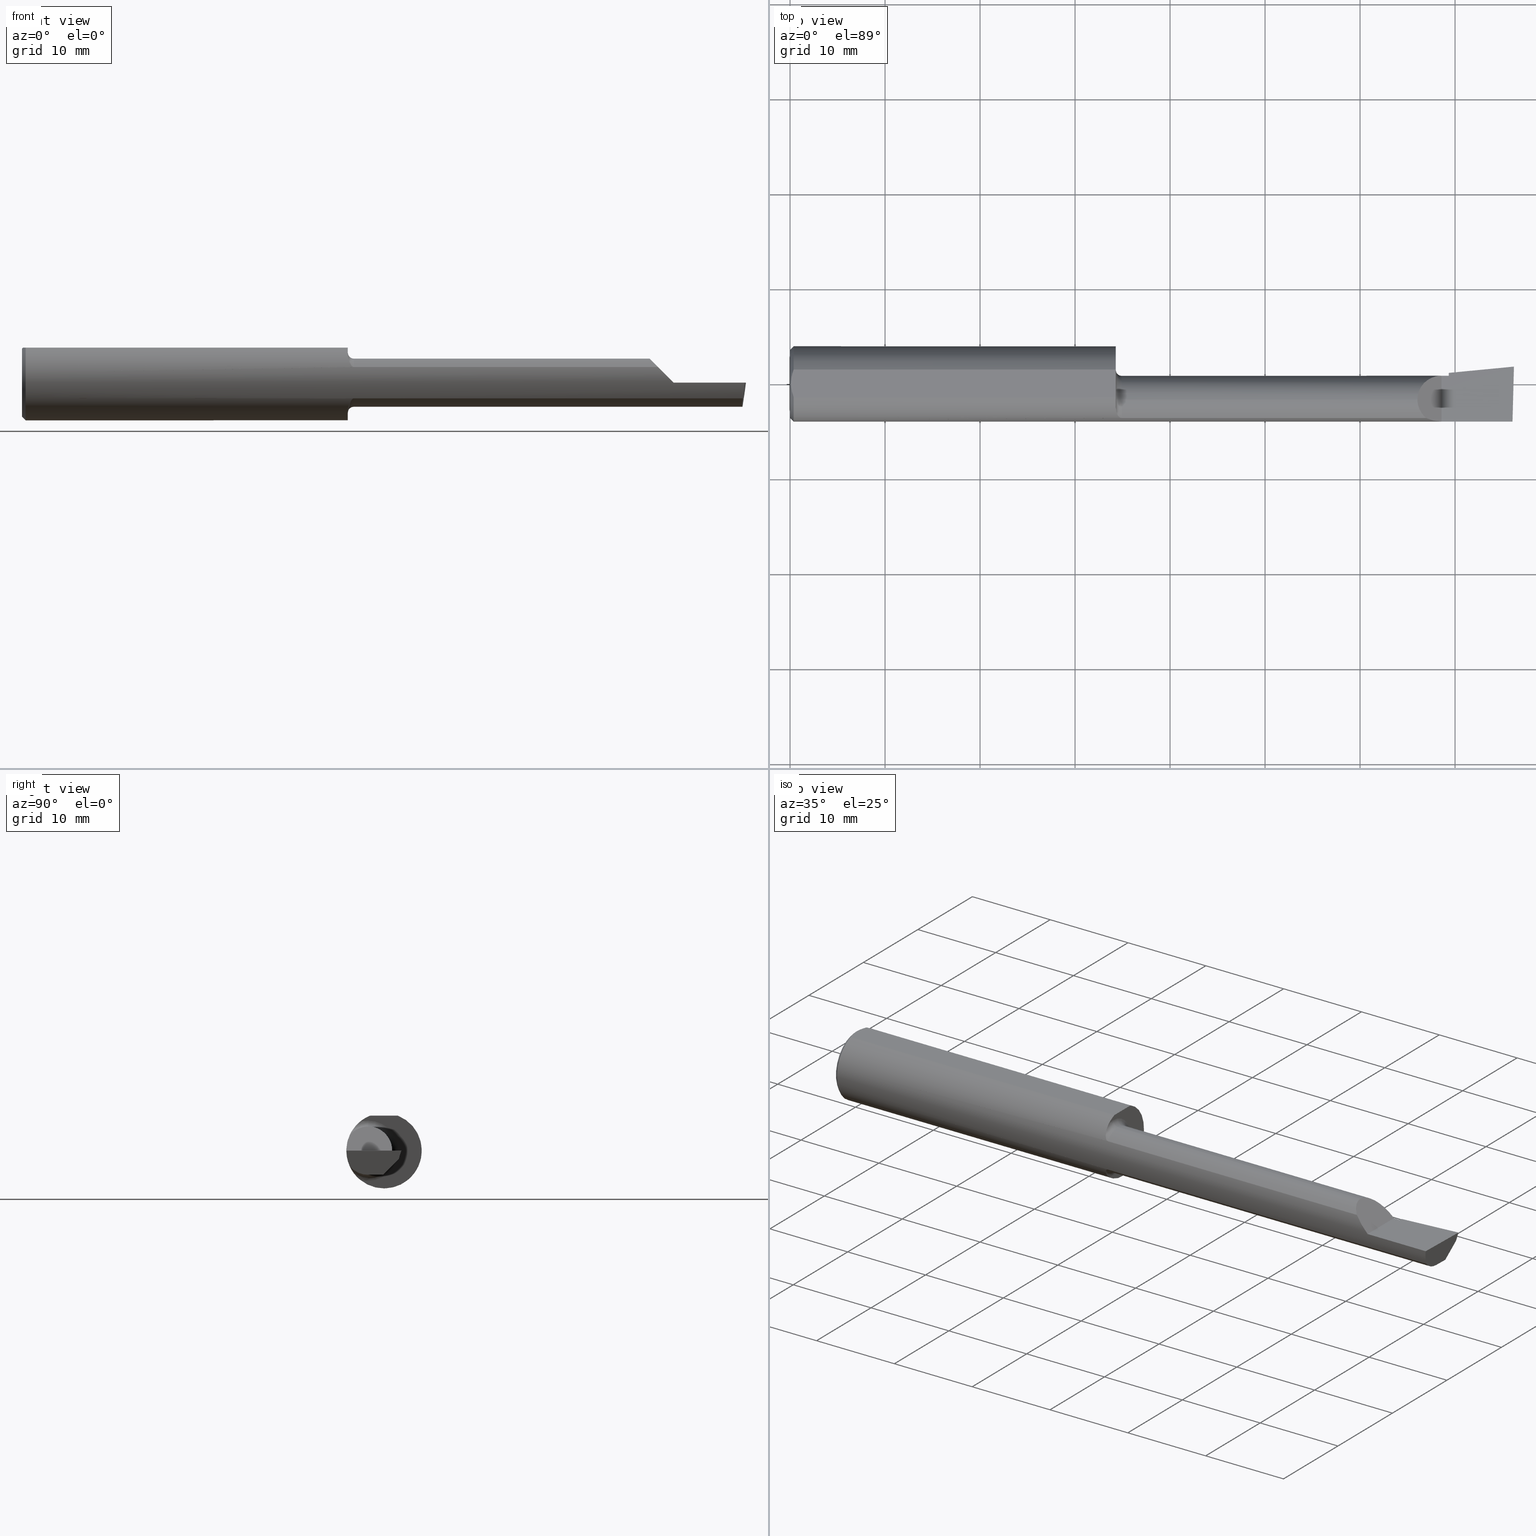
[diagram: canonical four-view strip — front | top / right | iso, engineering-drawing reading convention]
A machine part, canonical four-view strip (front | top / right | iso — engineering-drawing reading convention). The complete STEP part file that produces these views, byte-faithful:
ISO-10303-21;
HEADER;
FILE_DESCRIPTION (( 'STEP AP214' ),
    '1' );
FILE_NAME ('B23016000.STEP',
    '2020-05-07T17:23:28',
    ( '' ),
    ( '' ),
    'SwSTEP 2.0',
    'SolidWorks 2018',
    '' );
FILE_SCHEMA (( 'AUTOMOTIVE_DESIGN' ));
ENDSEC;

DATA;
#1 = EDGE_LOOP ( 'NONE', ( #568, #317, #294, #90, #201 ) ) ;
#2 = CARTESIAN_POINT ( 'NONE',  ( 0.01161840624095555018, -0.04838974479540033430, 0.1451000000000000345 ) ) ;
#3 = VECTOR ( 'NONE', #499, 39.37007874015748143 ) ;
#4 = LINE ( 'NONE', #204, #132 ) ;
#5 = AXIS2_PLACEMENT_3D ( 'NONE', #599, #686, #597 ) ;
#6 = CARTESIAN_POINT ( 'NONE',  ( 2.994029609882220999, -0.1561000000000000165, -6.741913824051284207E-17 ) ) ;
#7 = ORIENTED_EDGE ( 'NONE', *, *, #225, .F. ) ;
#8 = ORIENTED_EDGE ( 'NONE', *, *, #665, .T. ) ;
#9 = CARTESIAN_POINT ( 'NONE',  ( 0.008818052469297050708, -0.03886761757380372689, 0.1451000000000000068 ) ) ;
#10 = EDGE_CURVE ( 'NONE', #670, #557, #516, .T. ) ;
#11 = DIRECTION ( 'NONE',  ( -0.9953961983671800740, -0.09584575252021031166, 0.0000000000000000000 ) ) ;
#12 = COLOUR_RGB ( '',0.7529411764705882248, 0.7529411764705882248, 0.7529411764705882248 ) ;
#13 = CARTESIAN_POINT ( 'NONE',  ( 2.999999999999988010, 0.07190000000001794955, 6.195639166568494017E-14 ) ) ;
#14 = ADVANCED_FACE ( 'NONE', ( #263 ), #357, .F. ) ;
#15 = VERTEX_POINT ( 'NONE', #467 ) ;
#16 = DIRECTION ( 'NONE',  ( -0.9922060308645593851, 0.02598182930462575313, 0.1218693434050675817 ) ) ;
#17 = VERTEX_POINT ( 'NONE', #6 ) ;
#18 = ORIENTED_EDGE ( 'NONE', *, *, #649, .T. ) ;
#19 = AXIS2_PLACEMENT_3D ( 'NONE', #373, #40, #436 ) ;
#20 = CARTESIAN_POINT ( 'NONE',  ( 2.729999999999999982, 0.01597273520979038824, -0.05476916396232721362 ) ) ;
#21 = DIRECTION ( 'NONE',  ( 0.0000000000000000000, 0.0000000000000000000, 1.000000000000000000 ) ) ;
#22 = DIRECTION ( 'NONE',  ( -1.000000000000000000, -0.0000000000000000000, -0.0000000000000000000 ) ) ;
#23 = EDGE_CURVE ( 'NONE', #237, #694, #343, .T. ) ;
#24 = VERTEX_POINT ( 'NONE', #13 ) ;
#25 = LINE ( 'NONE', #365, #404 ) ;
#26 = DIRECTION ( 'NONE',  ( -1.000000000000000000, 0.0000000000000000000, -0.0000000000000000000 ) ) ;
#27 = EDGE_LOOP ( 'NONE', ( #429, #218, #481, #192 ) ) ;
#28 = CARTESIAN_POINT ( 'NONE',  ( 2.984129461495566904, -0.06558441532346323544, -0.09990000000000000269 ) ) ;
#29 = VECTOR ( 'NONE', #474, 39.37007874015748143 ) ;
#30 = PLANE ( 'NONE',  #312 ) ;
#31 = AXIS2_PLACEMENT_3D ( 'NONE', #249, #251, #315 ) ;
#32 = CARTESIAN_POINT ( 'NONE',  ( 3.000000000000000444, -0.06599999999999998923, -0.09990000000000000269 ) ) ;
#33 = ORIENTED_EDGE ( 'NONE', *, *, #624, .F. ) ;
#34 = AXIS2_PLACEMENT_3D ( 'NONE', #461, #322, #219 ) ;
#35 = ORIENTED_EDGE ( 'NONE', *, *, #682, .T. ) ;
#36 = CARTESIAN_POINT ( 'NONE',  ( 2.729999999999999982, 0.04590195698666438284, 0.0000000000000000000 ) ) ;
#37 = CARTESIAN_POINT ( 'NONE',  ( 2.700000000000000178, -0.1560999999999999888, -2.449293598294708386E-17 ) ) ;
#38 = CARTESIAN_POINT ( 'NONE',  ( 2.729999999999999982, -0.06599999999999998923, 0.0000000000000000000 ) ) ;
#39 = VECTOR ( 'NONE', #202, 39.37007874015748143 ) ;
#40 = DIRECTION ( 'NONE',  ( -1.000000000000000000, -0.0000000000000000000, -0.0000000000000000000 ) ) ;
#41 = AXIS2_PLACEMENT_3D ( 'NONE', #117, #111, #688 ) ;
#42 = CARTESIAN_POINT ( 'NONE',  ( 1.350000000000000089, -0.06599999999999998923, 0.0000000000000000000 ) ) ;
#43 = ORIENTED_EDGE ( 'NONE', *, *, #554, .F. ) ;
#44 = DIRECTION ( 'NONE',  ( -1.000000000000000000, -0.0000000000000000000, -0.0000000000000000000 ) ) ;
#45 = DIRECTION ( 'NONE',  ( 0.0000000000000000000, 0.0000000000000000000, -1.000000000000000000 ) ) ;
#46 = LINE ( 'NONE', #332, #3 ) ;
#47 = EDGE_CURVE ( 'NONE', #246, #57, #459, .T. ) ;
#48 = DIRECTION ( 'NONE',  ( 0.0000000000000000000, 0.0000000000000000000, 1.000000000000000000 ) ) ;
#49 = ORIENTED_EDGE ( 'NONE', *, *, #592, .T. ) ;
#50 = DIRECTION ( 'NONE',  ( -0.0000000000000000000, 0.0000000000000000000, 1.000000000000000000 ) ) ;
#51 = DIRECTION ( 'NONE',  ( 0.0000000000000000000, 1.000000000000000000, -1.656870447394628358E-16 ) ) ;
#52 = ORIENTED_EDGE ( 'NONE', *, *, #660, .T. ) ;
#53 = CARTESIAN_POINT ( 'NONE',  ( 2.729999999999999982, 0.04590195698666438284, 0.0000000000000000000 ) ) ;
#54 = LINE ( 'NONE', #507, #142 ) ;
#55 = CARTESIAN_POINT ( 'NONE',  ( 2.982005098963842027, -0.1170392233017039929, -0.1062257522883768429 ) ) ;
#56 = APPLICATION_PROTOCOL_DEFINITION ( 'draft international standard', 'automotive_design', 1998, #394 ) ;
#57 = VERTEX_POINT ( 'NONE', #265 ) ;
#58 = VECTOR ( 'NONE', #262, 39.37007874015748143 ) ;
#59 = DIRECTION ( 'NONE',  ( 0.0000000000000000000, 1.000000000000000000, 0.0000000000000000000 ) ) ;
#60 = EDGE_LOOP ( 'NONE', ( #705, #489, #392, #273 ) ) ;
#61 = CYLINDRICAL_SURFACE ( 'NONE', #5, 0.09989999999999998881 ) ;
#62 = ORIENTED_EDGE ( 'NONE', *, *, #519, .T. ) ;
#63 = EDGE_CURVE ( 'NONE', #17, #284, #196, .T. ) ;
#64 = ADVANCED_FACE ( 'NONE', ( #468 ), #30, .T. ) ;
#65 = VECTOR ( 'NONE', #354, 39.37007874015748143 ) ;
#66 = AXIS2_PLACEMENT_3D ( 'NONE', #162, #383, #51 ) ;
#67 = EDGE_CURVE ( 'NONE', #337, #246, #408, .T. ) ;
#68 = CARTESIAN_POINT ( 'NONE',  ( 0.0000000000000000000, -0.05756040305626783371, 0.1450999999999999512 ) ) ;
#69 = ADVANCED_FACE ( 'NONE', ( #236 ), #72, .F. ) ;
#70 = FACE_OUTER_BOUND ( 'NONE', #430, .T. ) ;
#71 = ORIENTED_EDGE ( 'NONE', *, *, #134, .T. ) ;
#72 = PLANE ( 'NONE',  #386 ) ;
#73 = ORIENTED_EDGE ( 'NONE', *, *, #287, .T. ) ;
#74 = FACE_OUTER_BOUND ( 'NONE', #585, .T. ) ;
#75 = CARTESIAN_POINT ( 'NONE',  ( 1.350000000000000089, 0.2061000000000000332, 0.1450999999999999512 ) ) ;
#76 = ORIENTED_EDGE ( 'NONE', *, *, #562, .T. ) ;
#77 = CARTESIAN_POINT ( 'NONE',  ( 1.350000000000000089, -0.06599999999999998923, 0.1248999999999999139 ) ) ;
#78 = ORIENTED_EDGE ( 'NONE', *, *, #63, .T. ) ;
#79 = CARTESIAN_POINT ( 'NONE',  ( 3.010979566536823526, 0.06220714699351684307, -0.03500000000000000333 ) ) ;
#80 = AXIS2_PLACEMENT_3D ( 'NONE', #504, #543, #541 ) ;
#81 = DIRECTION ( 'NONE',  ( -1.000000000000000000, -0.0000000000000000000, -0.0000000000000000000 ) ) ;
#82 = CARTESIAN_POINT ( 'NONE',  ( 1.375000000000000000, -0.06599999999999997535, -0.1248999999999999139 ) ) ;
#83 = FACE_OUTER_BOUND ( 'NONE', #604, .T. ) ;
#84 = CARTESIAN_POINT ( 'NONE',  ( 2.984118579027821738, -0.06599999999999998923, -0.09990000000000000269 ) ) ;
#85 = EDGE_CURVE ( 'NONE', #15, #569, #128, .T. ) ;
#86 = ORIENTED_EDGE ( 'NONE', *, *, #102, .T. ) ;
#87 = DIRECTION ( 'NONE',  ( -0.02617694830780482526, -0.9996573249755590362, 0.0000000000000000000 ) ) ;
#88 = CARTESIAN_POINT ( 'NONE',  ( 2.635154559332284041, -0.1419939393939393113, 0.06484544066771599780 ) ) ;
#89 = DIRECTION ( 'NONE',  ( 0.0000000000000000000, 0.0000000000000000000, 1.000000000000000000 ) ) ;
#90 = ORIENTED_EDGE ( 'NONE', *, *, #47, .F. ) ;
#91 = AXIS2_PLACEMENT_3D ( 'NONE', #368, #545, #149 ) ;
#92 = DIRECTION ( 'NONE',  ( 0.0000000000000000000, 0.0000000000000000000, 1.000000000000000000 ) ) ;
#93 = ORIENTED_EDGE ( 'NONE', *, *, #580, .F. ) ;
#94 = ORIENTED_EDGE ( 'NONE', *, *, #256, .F. ) ;
#95 = CARTESIAN_POINT ( 'NONE',  ( 2.984162675884399540, -0.1227037540429563450, -0.08745207517224938554 ) ) ;
#96 = EDGE_CURVE ( 'NONE', #611, #17, #302, .T. ) ;
#97 = AXIS2_PLACEMENT_3D ( 'NONE', #653, #656, #334 ) ;
#98 = VECTOR ( 'NONE', #11, 39.37007874015748854 ) ;
#99 = FACE_OUTER_BOUND ( 'NONE', #226, .T. ) ;
#100 = DIRECTION ( 'NONE',  ( 0.0000000000000000000, -1.000000000000000000, 0.0000000000000000000 ) ) ;
#101 =( GEOMETRIC_REPRESENTATION_CONTEXT ( 3 ) GLOBAL_UNCERTAINTY_ASSIGNED_CONTEXT ( ( #327 ) ) GLOBAL_UNIT_ASSIGNED_CONTEXT ( ( #151, #582, #326 ) ) REPRESENTATION_CONTEXT ( 'NONE', 'WORKASPACE' ) );
#102 = EDGE_CURVE ( 'NONE', #529, #479, #112, .T. ) ;
#103 = EDGE_LOOP ( 'NONE', ( #123, #221, #412, #171, #333, #130 ) ) ;
#104 = CARTESIAN_POINT ( 'NONE',  ( 1.375000000000000000, -0.06599999999999997535, -0.09989999999999990554 ) ) ;
#105 = DIRECTION ( 'NONE',  ( -1.000000000000000000, -0.0000000000000000000, -0.0000000000000000000 ) ) ;
#106 = FACE_OUTER_BOUND ( 'NONE', #181, .T. ) ;
#107 = APPLICATION_CONTEXT ( 'automotive_design' ) ;
#108 = ORIENTED_EDGE ( 'NONE', *, *, #115, .T. ) ;
#109 = CIRCLE ( 'NONE', #156, 0.1248999999999999139 ) ;
#110 = LENGTH_MEASURE_WITH_UNIT ( LENGTH_MEASURE( 0.02539999999999999897 ), #153 );
#111 = DIRECTION ( 'NONE',  ( 1.000000000000000000, 0.0000000000000000000, 0.0000000000000000000 ) ) ;
#112 = LINE ( 'NONE', #281, #690 ) ;
#113 = LINE ( 'NONE', #454, #425 ) ;
#114 = VERTEX_POINT ( 'NONE', #257 ) ;
#115 = EDGE_CURVE ( 'NONE', #209, #642, #367, .T. ) ;
#116 = ORIENTED_EDGE ( 'NONE', *, *, #185, .F. ) ;
#117 = CARTESIAN_POINT ( 'NONE',  ( 0.01499999999999999424, 0.0000000000000000000, 0.0000000000000000000 ) ) ;
#118 = AXIS2_PLACEMENT_3D ( 'NONE', #622, #695, #668 ) ;
#119 = VECTOR ( 'NONE', #245, 39.37007874015748143 ) ;
#120 =( BOUNDED_CURVE ( )  B_SPLINE_CURVE ( 3, ( #684, #680, #627, #645 ),
 .UNSPECIFIED., .F., .T. ) 
 B_SPLINE_CURVE_WITH_KNOTS ( ( 4, 4 ),
 ( 4.712388980384689674, 5.140782042693055942 ),
 .UNSPECIFIED. ) 
 CURVE ( )  GEOMETRIC_REPRESENTATION_ITEM ( )  RATIONAL_B_SPLINE_CURVE ( ( 1.000000000000000000, 0.9847649979006014576, 0.9847649979006014576, 1.000000000000000000 ) ) 
 REPRESENTATION_ITEM ( '' )  );
#121 = CIRCLE ( 'NONE', #602, 0.1560999999999999888 ) ;
#122 = VERTEX_POINT ( 'NONE', #293 ) ;
#123 = ORIENTED_EDGE ( 'NONE', *, *, #63, .F. ) ;
#124 = AXIS2_PLACEMENT_3D ( 'NONE', #595, #588, #21 ) ;
#125 = CARTESIAN_POINT ( 'NONE',  ( 2.729999999999999982, -0.06599999999999998923, 0.0000000000000000000 ) ) ;
#126 = EDGE_LOOP ( 'NONE', ( #462, #693, #490, #330, #7, #272 ) ) ;
#127 = DIRECTION ( 'NONE',  ( -1.000000000000000000, -0.0000000000000000000, -0.0000000000000000000 ) ) ;
#128 = LINE ( 'NONE', #299, #528 ) ;
#129 = DIRECTION ( 'NONE',  ( -1.000000000000000000, 0.0000000000000000000, 1.460108795288649722E-16 ) ) ;
#130 = ORIENTED_EDGE ( 'NONE', *, *, #242, .F. ) ;
#131 = DIRECTION ( 'NONE',  ( 0.0000000000000000000, 0.6963153109074923242, 0.7177360153954950306 ) ) ;
#132 = VECTOR ( 'NONE', #634, 39.37007874015748854 ) ;
#133 = DIRECTION ( 'NONE',  ( 0.0000000000000000000, 0.0000000000000000000, 1.000000000000000000 ) ) ;
#134 = EDGE_CURVE ( 'NONE', #611, #397, #323, .T. ) ;
#135 = PRODUCT_DEFINITION ( 'UNKNOWN', '', #176, #678 ) ;
#136 = DIRECTION ( 'NONE',  ( 0.0000000000000000000, 0.0000000000000000000, 1.000000000000000000 ) ) ;
#137 = CARTESIAN_POINT ( 'NONE',  ( 1.375000000000000000, -0.1419939393939393113, -0.06484544066771588677 ) ) ;
#138 = ORIENTED_EDGE ( 'NONE', *, *, #607, .T. ) ;
#139 = AXIS2_PLACEMENT_3D ( 'NONE', #200, #555, #488 ) ;
#140 = CARTESIAN_POINT ( 'NONE',  ( 1.362996561902687809, -0.1373850824029525242, -0.07416982835688742948 ) ) ;
#141 = CARTESIAN_POINT ( 'NONE',  ( 1.375000000000000000, -0.06599999999999998923, 0.0000000000000000000 ) ) ;
#142 = VECTOR ( 'NONE', #444, 39.37007874015748143 ) ;
#143 = ORIENTED_EDGE ( 'NONE', *, *, #256, .T. ) ;
#144 = DIRECTION ( 'NONE',  ( 0.0000000000000000000, 0.0000000000000000000, 1.000000000000000000 ) ) ;
#145 = CARTESIAN_POINT ( 'NONE',  ( 2.729999999999999982, 0.01597273520979038824, -0.05476916396232721362 ) ) ;
#146 = CYLINDRICAL_SURFACE ( 'NONE', #419, 0.1560999999999999888 ) ;
#147 = ORIENTED_EDGE ( 'NONE', *, *, #356, .F. ) ;
#148 = CARTESIAN_POINT ( 'NONE',  ( 2.052500000000000213, -0.1419939393939393391, 0.06484544066771595616 ) ) ;
#149 = DIRECTION ( 'NONE',  ( 0.0000000000000000000, 0.0000000000000000000, 1.000000000000000000 ) ) ;
#150 = EDGE_CURVE ( 'NONE', #529, #576, #231, .T. ) ;
#151 =( CONVERSION_BASED_UNIT ( 'INCH', #110 ) LENGTH_UNIT ( ) NAMED_UNIT ( #400 ) );
#152 = DIRECTION ( 'NONE',  ( -0.0000000000000000000, 0.0000000000000000000, 1.000000000000000000 ) ) ;
#153 =( LENGTH_UNIT ( ) NAMED_UNIT ( * ) SI_UNIT ( $, .METRE. ) );
#154 = CARTESIAN_POINT ( 'NONE',  ( 0.0000000000000000000, -0.06599999999999998923, 0.0000000000000000000 ) ) ;
#155 = FACE_OUTER_BOUND ( 'NONE', #469, .T. ) ;
#156 = AXIS2_PLACEMENT_3D ( 'NONE', #42, #374, #89 ) ;
#157 = CARTESIAN_POINT ( 'NONE',  ( 2.729999999999999982, 0.04248346027991097007, -0.01112992196204300697 ) ) ;
#158 = ORIENTED_EDGE ( 'NONE', *, *, #96, .T. ) ;
#159 = ORIENTED_EDGE ( 'NONE', *, *, #67, .T. ) ;
#160 = PLANE ( 'NONE',  #635 ) ;
#161 = CARTESIAN_POINT ( 'NONE',  ( 0.01499999999999999424, 0.0000000000000000000, -0.1560999999999999888 ) ) ;
#162 = CARTESIAN_POINT ( 'NONE',  ( 3.000000000000000444, 0.2061000000000000332, 0.1450999999999999512 ) ) ;
#163 = ORIENTED_EDGE ( 'NONE', *, *, #325, .T. ) ;
#164 = DIRECTION ( 'NONE',  ( 0.0000000000000000000, 0.0000000000000000000, -1.000000000000000000 ) ) ;
#165 = DIRECTION ( 'NONE',  ( 1.000000000000000000, 0.0000000000000000000, 0.0000000000000000000 ) ) ;
#166 =( LENGTH_UNIT ( ) NAMED_UNIT ( * ) SI_UNIT ( $, .METRE. ) );
#167 = CARTESIAN_POINT ( 'NONE',  ( 2.600099999999998968, -0.007479934881072191483, 0.09989999999999998881 ) ) ;
#168 = AXIS2_PLACEMENT_3D ( 'NONE', #677, #478, #188 ) ;
#169 = CONICAL_SURFACE ( 'NONE', #139, 0.1560999999999999888, 0.7853981633974602694 ) ;
#170 = DIRECTION ( 'NONE',  ( -0.0000000000000000000, 1.000000000000000000, -0.0000000000000000000 ) ) ;
#171 = ORIENTED_EDGE ( 'NONE', *, *, #283, .F. ) ;
#172 = VECTOR ( 'NONE', #472, 39.37007874015748854 ) ;
#173 = FACE_OUTER_BOUND ( 'NONE', #27, .T. ) ;
#174 = EDGE_CURVE ( 'NONE', #114, #479, #424, .T. ) ;
#175 = ORIENTED_EDGE ( 'NONE', *, *, #415, .T. ) ;
#176 = PRODUCT_DEFINITION_FORMATION_WITH_SPECIFIED_SOURCE ( 'ANY', '', #274, .NOT_KNOWN. ) ;
#177 = CARTESIAN_POINT ( 'NONE',  ( 0.004000000000000188301, -0.009851916903761191377, 0.1450999999999999512 ) ) ;
#178 = EDGE_CURVE ( 'NONE', #361, #122, #521, .T. ) ;
#179 = ORIENTED_EDGE ( 'NONE', *, *, #378, .F. ) ;
#180 = ADVANCED_FACE ( 'NONE', ( #186 ), #160, .T. ) ;
#181 = EDGE_LOOP ( 'NONE', ( #179, #405, #666, #71, #452 ) ) ;
#182 = CARTESIAN_POINT ( 'NONE',  ( 3.000000000000000444, -0.2500000000000000555, -6.829619984160658046E-17 ) ) ;
#183 = CARTESIAN_POINT ( 'NONE',  ( 0.004000000000000238608, 1.884449684559922719E-17, 0.1450999999999999790 ) ) ;
#184 = DIRECTION ( 'NONE',  ( 0.0000000000000000000, -1.000000000000000000, 1.656870447394628358E-16 ) ) ;
#185 = EDGE_CURVE ( 'NONE', #576, #246, #121, .T. ) ;
#186 = FACE_OUTER_BOUND ( 'NONE', #605, .T. ) ;
#187 = LINE ( 'NONE', #145, #591 ) ;
#188 = DIRECTION ( 'NONE',  ( -0.7071067811865503483, 0.0000000000000000000, 0.7071067811865446862 ) ) ;
#189 = ORIENTED_EDGE ( 'NONE', *, *, #378, .T. ) ;
#190 = CONICAL_SURFACE ( 'NONE', #41, 0.1560999999999999888, 0.7853981633974602694 ) ;
#191 = DIRECTION ( 'NONE',  ( -1.000000000000000000, -0.0000000000000000000, -0.0000000000000000000 ) ) ;
#192 = ORIENTED_EDGE ( 'NONE', *, *, #707, .T. ) ;
#193 = AXIS2_PLACEMENT_3D ( 'NONE', #38, #432, #92 ) ;
#194 = DIRECTION ( 'NONE',  ( 0.0000000000000000000, 0.0000000000000000000, 1.000000000000000000 ) ) ;
#195 = CARTESIAN_POINT ( 'NONE',  ( 1.367803744158915924, -0.1404244429940954553, -0.06818941713933171500 ) ) ;
#196 = LINE ( 'NONE', #416, #65 ) ;
#197 = CARTESIAN_POINT ( 'NONE',  ( 0.0000000000000000000, 0.0000000000000000000, 0.0000000000000000000 ) ) ;
#198 = CARTESIAN_POINT ( 'NONE',  ( 1.356590010709525229, -0.1296703571699488189, -0.08713627291423986509 ) ) ;
#199 = ORIENTED_EDGE ( 'NONE', *, *, #532, .F. ) ;
#200 = CARTESIAN_POINT ( 'NONE',  ( 0.01499999999999999424, 0.0000000000000000000, 0.0000000000000000000 ) ) ;
#201 = ORIENTED_EDGE ( 'NONE', *, *, #67, .F. ) ;
#202 = DIRECTION ( 'NONE',  ( 1.000000000000000000, 0.0000000000000000000, 0.0000000000000000000 ) ) ;
#203 = LINE ( 'NONE', #655, #514 ) ;
#204 = CARTESIAN_POINT ( 'NONE',  ( 2.993876284481120198, -0.002402782730616231151, -0.09990000000000000269 ) ) ;
#205 = FACE_OUTER_BOUND ( 'NONE', #503, .T. ) ;
#206 = AXIS2_PLACEMENT_3D ( 'NONE', #182, #570, #129 ) ;
#207 = CARTESIAN_POINT ( 'NONE',  ( 2.600099999999999412, -0.09571819601686555601, 0.09990000000000000269 ) ) ;
#208 = CARTESIAN_POINT ( 'NONE',  ( 0.01499999999999999424, -0.05756040305626774350, 0.1451000000000000068 ) ) ;
#209 = VERTEX_POINT ( 'NONE', #673 ) ;
#210 = ORIENTED_EDGE ( 'NONE', *, *, #115, .F. ) ;
#211 = DIRECTION ( 'NONE',  ( 0.0000000000000000000, 0.0000000000000000000, 1.000000000000000000 ) ) ;
#212 = EDGE_CURVE ( 'NONE', #578, #15, #267, .T. ) ;
#213 =( NAMED_UNIT ( * ) SI_UNIT ( $, .STERADIAN. ) SOLID_ANGLE_UNIT ( ) );
#214 = PRODUCT_RELATED_PRODUCT_CATEGORY ( 'part', '', ( #274 ) ) ;
#215 = CARTESIAN_POINT ( 'NONE',  ( 1.350000000000000089, -0.09941818181818193323, 0.1203463132961160309 ) ) ;
#216 = EDGE_CURVE ( 'NONE', #209, #57, #113, .T. ) ;
#217 = PLANE ( 'NONE',  #691 ) ;
#218 = ORIENTED_EDGE ( 'NONE', *, *, #298, .F. ) ;
#219 = DIRECTION ( 'NONE',  ( 0.0000000000000000000, 0.0000000000000000000, -1.000000000000000000 ) ) ;
#220 =( NAMED_UNIT ( * ) PLANE_ANGLE_UNIT ( ) SI_UNIT ( $, .RADIAN. ) );
#221 = ORIENTED_EDGE ( 'NONE', *, *, #225, .T. ) ;
#222 = VECTOR ( 'NONE', #290, 39.37007874015748143 ) ;
#223 = B_SPLINE_CURVE_WITH_KNOTS ( 'NONE', 3,
 ( #137, #484, #630, #359, #195, #486, #140, #537, #198, #581, #247, #632, #311, #685 ),
 .UNSPECIFIED., .F., .F.,
 ( 4, 2, 2, 2, 2, 2, 4 ),
 ( 1.961289441070630364E-07, 0.0001258819157031949344, 0.0002515677024622827991, 0.0005029392759804585285, 0.001005682423016819637, 0.001508425570053180962, 0.002011168717089542504 ),
 .UNSPECIFIED. ) ;
#224 = CIRCLE ( 'NONE', #559, 0.1410999999999996146 ) ;
#225 = EDGE_CURVE ( 'NONE', #17, #24, #681, .T. ) ;
#226 = EDGE_LOOP ( 'NONE', ( #706, #306, #542, #94 ) ) ;
#227 = VERTEX_POINT ( 'NONE', #476 ) ;
#228 = VECTOR ( 'NONE', #184, 39.37007874015748143 ) ;
#229 = AXIS2_PLACEMENT_3D ( 'NONE', #55, #16, #307 ) ;
#230 = ORIENTED_EDGE ( 'NONE', *, *, #515, .T. ) ;
#231 = CIRCLE ( 'NONE', #510, 0.1560999999999999888 ) ;
#232 = ADVANCED_FACE ( 'NONE', ( #70 ), #258, .T. ) ;
#233 = CARTESIAN_POINT ( 'NONE',  ( 2.700000000000000178, -0.2500000000000000555, -2.449293598294708386E-17 ) ) ;
#234 = ORIENTED_EDGE ( 'NONE', *, *, #420, .T. ) ;
#235 = CARTESIAN_POINT ( 'NONE',  ( 2.729999999999999982, 0.02031953758082122655, -0.05028864118101811914 ) ) ;
#236 = FACE_OUTER_BOUND ( 'NONE', #617, .T. ) ;
#237 = VERTEX_POINT ( 'NONE', #379 ) ;
#238 = ORIENTED_EDGE ( 'NONE', *, *, #519, .F. ) ;
#239 = CARTESIAN_POINT ( 'NONE',  ( 1.350000000000000089, 0.0000000000000000000, 0.0000000000000000000 ) ) ;
#240 = CARTESIAN_POINT ( 'NONE',  ( 0.01499999999999999424, 0.0000000000000000000, 0.0000000000000000000 ) ) ;
#241 = DIRECTION ( 'NONE',  ( 0.0000000000000000000, 0.0000000000000000000, 1.000000000000000000 ) ) ;
#242 = EDGE_CURVE ( 'NONE', #284, #518, #292, .T. ) ;
#243 = VECTOR ( 'NONE', #347, 39.37007874015748854 ) ;
#244 = PRESENTATION_STYLE_ASSIGNMENT (( #549 ) ) ;
#245 = DIRECTION ( 'NONE',  ( 0.1053106618240773340, 0.6976485211320194724, 0.7086580314005345160 ) ) ;
#246 = VERTEX_POINT ( 'NONE', #261 ) ;
#247 = CARTESIAN_POINT ( 'NONE',  ( 1.352063943834881377, -0.1181307192064763728, -0.1022448908112566918 ) ) ;
#248 = CARTESIAN_POINT ( 'NONE',  ( 1.350000000000000311, -0.1044500923568690148, 0.1161894481365070009 ) ) ;
#249 = CARTESIAN_POINT ( 'NONE',  ( 1.350000000000000089, 0.0000000000000000000, 0.0000000000000000000 ) ) ;
#250 = CARTESIAN_POINT ( 'NONE',  ( 3.010979566536823526, 0.06220714699351684307, -0.03500000000000000333 ) ) ;
#251 = DIRECTION ( 'NONE',  ( 1.000000000000000000, 0.0000000000000000000, 0.0000000000000000000 ) ) ;
#252 = ORIENTED_EDGE ( 'NONE', *, *, #607, .F. ) ;
#253 = DIRECTION ( 'NONE',  ( 1.000000000000000000, 0.0000000000000000000, 0.0000000000000000000 ) ) ;
#254 = ORIENTED_EDGE ( 'NONE', *, *, #336, .T. ) ;
#255 = DIRECTION ( 'NONE',  ( 0.0000000000000000000, 0.0000000000000000000, 1.000000000000000000 ) ) ;
#256 = EDGE_CURVE ( 'NONE', #530, #518, #376, .T. ) ;
#257 = CARTESIAN_POINT ( 'NONE',  ( 1.350000000000000089, -0.09941818181818193323, -0.1203463132961160309 ) ) ;
#258 = PLANE ( 'NONE',  #34 ) ;
#259 = CARTESIAN_POINT ( 'NONE',  ( 2.984118579027821738, -0.06599999999999998923, -0.09990000000000000269 ) ) ;
#260 = CIRCLE ( 'NONE', #304, 0.02499999999999993894 ) ;
#261 = CARTESIAN_POINT ( 'NONE',  ( 0.01499999999999999424, -0.05756040305626774350, 0.1451000000000000068 ) ) ;
#262 = DIRECTION ( 'NONE',  ( 0.7071067811865390240, 0.0000000000000000000, -0.7071067811865560104 ) ) ;
#263 = FACE_OUTER_BOUND ( 'NONE', #126, .T. ) ;
#264 = ADVANCED_BREP_SHAPE_REPRESENTATION ( 'B23016000', ( #396, #97 ), #533 ) ;
#265 = CARTESIAN_POINT ( 'NONE',  ( 0.004000000000000238608, 1.884449684559922719E-17, 0.1450999999999999790 ) ) ;
#266 = CARTESIAN_POINT ( 'NONE',  ( 1.375000000000000000, -0.1419939393939393113, -0.06484544066771588677 ) ) ;
#267 = LINE ( 'NONE', #435, #29 ) ;
#268 = FILL_AREA_STYLE_COLOUR ( '', #12 ) ;
#269 = LENGTH_MEASURE_WITH_UNIT ( LENGTH_MEASURE( 0.02539999999999999897 ), #166 );
#270 = ORIENTED_EDGE ( 'NONE', *, *, #592, .F. ) ;
#271 = CARTESIAN_POINT ( 'NONE',  ( 2.994029609882220999, -0.1561000000000000165, -6.741913824051284207E-17 ) ) ;
#272 = ORIENTED_EDGE ( 'NONE', *, *, #96, .F. ) ;
#273 = ORIENTED_EDGE ( 'NONE', *, *, #329, .T. ) ;
#274 = PRODUCT ( 'B23016000', 'B23016000', '', ( #711 ) ) ;
#275 = AXIS2_PLACEMENT_3D ( 'NONE', #353, #22, #133 ) ;
#276 = ADVANCED_FACE ( 'NONE', ( #286 ), #466, .F. ) ;
#277 = CARTESIAN_POINT ( 'NONE',  ( 2.991270569402207702, -0.1560999999999999333, -0.02246288137099534954 ) ) ;
#278 = SURFACE_STYLE_USAGE ( .BOTH. , #610 ) ;
#279 = PRODUCT_DEFINITION_SHAPE ( 'NONE', 'NONE',  #135 ) ;
#280 = CIRCLE ( 'NONE', #193, 0.09989999999999998881 ) ;
#281 = CARTESIAN_POINT ( 'NONE',  ( 0.0000000000000000000, 0.05756040305626788228, 0.1450999999999999235 ) ) ;
#282 = DIMENSIONAL_EXPONENTS ( 1.000000000000000000, 0.0000000000000000000, 0.0000000000000000000, 0.0000000000000000000, 0.0000000000000000000, 0.0000000000000000000, 0.0000000000000000000 ) ;
#283 = EDGE_CURVE ( 'NONE', #447, #227, #25, .T. ) ;
#284 = VERTEX_POINT ( 'NONE', #37 ) ;
#285 = ADVANCED_FACE ( 'NONE', ( #465 ), #146, .T. ) ;
#286 = FACE_OUTER_BOUND ( 'NONE', #520, .T. ) ;
#287 = EDGE_CURVE ( 'NONE', #284, #313, #120, .T. ) ;
#288 = ADVANCED_FACE ( 'NONE', ( #106 ), #654, .T. ) ;
#289 = ORIENTED_EDGE ( 'NONE', *, *, #562, .F. ) ;
#290 = DIRECTION ( 'NONE',  ( -1.000000000000000000, -0.0000000000000000000, -0.0000000000000000000 ) ) ;
#291 = TOROIDAL_SURFACE ( 'NONE', #564, 0.1248999999999999139, 0.02499999999999993894 ) ;
#292 = LINE ( 'NONE', #233, #451 ) ;
#293 = CARTESIAN_POINT ( 'NONE',  ( 1.375000000000000000, -0.1419939393939392003, 0.06484544066771598392 ) ) ;
#294 = ORIENTED_EDGE ( 'NONE', *, *, #440, .F. ) ;
#295 = CARTESIAN_POINT ( 'NONE',  ( 0.01499999999999999424, 0.05756040305626788228, 0.1450999999999999235 ) ) ;
#296 = CARTESIAN_POINT ( 'NONE',  ( 2.988699611492194652, -0.1513252362624134539, -0.04441242967472209396 ) ) ;
#297 = DIRECTION ( 'NONE',  ( 0.0000000000000000000, 0.0000000000000000000, -1.000000000000000000 ) ) ;
#298 = EDGE_CURVE ( 'NONE', #361, #670, #109, .T. ) ;
#299 = CARTESIAN_POINT ( 'NONE',  ( 2.729999999999999982, -0.06599999999999998923, -0.09990000000000000269 ) ) ;
#300 = TOROIDAL_SURFACE ( 'NONE', #629, 0.1248999999999999139, 0.02499999999999993894 ) ;
#301 = CARTESIAN_POINT ( 'NONE',  ( 3.009953961983671267, 0.07285845752520209162, -6.829619984160658046E-17 ) ) ;
#302 =( BOUNDED_CURVE ( )  B_SPLINE_CURVE ( 3, ( #310, #296, #277, #271 ),
 .UNSPECIFIED., .F., .F. ) 
 B_SPLINE_CURVE_WITH_KNOTS ( ( 4, 4 ),
 ( 0.9323538202067606084, 1.360746882515126543 ),
 .UNSPECIFIED. ) 
 CURVE ( )  GEOMETRIC_REPRESENTATION_ITEM ( )  RATIONAL_B_SPLINE_CURVE ( ( 1.000000000000000000, 0.9847649979006014576, 0.9847649979006014576, 1.000000000000000000 ) ) 
 REPRESENTATION_ITEM ( '' )  );
#303 = SURFACE_STYLE_FILL_AREA ( #644 ) ;
#304 = AXIS2_PLACEMENT_3D ( 'NONE', #82, #421, #194 ) ;
#305 = EDGE_LOOP ( 'NONE', ( #560, #163, #399, #651 ) ) ;
#306 = ORIENTED_EDGE ( 'NONE', *, *, #287, .F. ) ;
#307 = DIRECTION ( 'NONE',  ( 0.1219104985252027346, 0.0000000000000000000, 0.9925410975618774723 ) ) ;
#308 = CIRCLE ( 'NONE', #80, 0.09989999999999990554 ) ;
#309 = CARTESIAN_POINT ( 'NONE',  ( 0.01499999999999999424, 0.0000000000000000000, -0.1560999999999999888 ) ) ;
#310 = CARTESIAN_POINT ( 'NONE',  ( 2.986434241799654110, -0.1419939393939393391, -0.06484544066771595616 ) ) ;
#311 = CARTESIAN_POINT ( 'NONE',  ( 1.349999999999999867, -0.1044772303701486382, -0.1161670294028995659 ) ) ;
#312 = AXIS2_PLACEMENT_3D ( 'NONE', #36, #26, #50 ) ;
#313 = VERTEX_POINT ( 'NONE', #551 ) ;
#314 = DIRECTION ( 'NONE',  ( 1.000000000000000000, 0.0000000000000000000, 0.0000000000000000000 ) ) ;
#315 = DIRECTION ( 'NONE',  ( 0.0000000000000000000, 0.0000000000000000000, -1.000000000000000000 ) ) ;
#316 = CARTESIAN_POINT ( 'NONE',  ( 0.01499999999999999424, 0.0000000000000000000, 0.0000000000000000000 ) ) ;
#317 = ORIENTED_EDGE ( 'NONE', *, *, #102, .F. ) ;
#318 = ORIENTED_EDGE ( 'NONE', *, *, #216, .T. ) ;
#319 = CARTESIAN_POINT ( 'NONE',  ( 2.600099999999999412, -0.06599999999999998923, 0.09989999999999998881 ) ) ;
#320 = DIRECTION ( 'NONE',  ( -0.0000000000000000000, 0.0000000000000000000, 1.000000000000000000 ) ) ;
#321 = DIRECTION ( 'NONE',  ( -1.000000000000000000, -0.0000000000000000000, -0.0000000000000000000 ) ) ;
#322 = DIRECTION ( 'NONE',  ( 1.000000000000000000, 0.0000000000000000000, 0.0000000000000000000 ) ) ;
#323 = LINE ( 'NONE', #618, #222 ) ;
#324 = ORIENTED_EDGE ( 'NONE', *, *, #698, .T. ) ;
#325 = EDGE_CURVE ( 'NONE', #227, #694, #494, .T. ) ;
#326 =( NAMED_UNIT ( * ) SI_UNIT ( $, .STERADIAN. ) SOLID_ANGLE_UNIT ( ) );
#327 = UNCERTAINTY_MEASURE_WITH_UNIT (LENGTH_MEASURE( 1.000000000000000082E-05 ), #151, 'distance_accuracy_value', 'NONE');
#328 = CARTESIAN_POINT ( 'NONE',  ( 0.008823987512428478272, 0.03887788046871691605, 0.1450999999999999790 ) ) ;
#329 = EDGE_CURVE ( 'NONE', #227, #24, #203, .T. ) ;
#330 = ORIENTED_EDGE ( 'NONE', *, *, #456, .T. ) ;
#331 = ORIENTED_EDGE ( 'NONE', *, *, #10, .F. ) ;
#332 = CARTESIAN_POINT ( 'NONE',  ( 0.0000000000000000000, -0.06599999999999998923, 0.09989999999999998881 ) ) ;
#333 = ORIENTED_EDGE ( 'NONE', *, *, #613, .F. ) ;
#334 = DIRECTION ( 'NONE',  ( 1.000000000000000000, 0.0000000000000000000, 0.0000000000000000000 ) ) ;
#335 = LINE ( 'NONE', #584, #620 ) ;
#336 = EDGE_CURVE ( 'NONE', #447, #450, #483, .T. ) ;
#337 = VERTEX_POINT ( 'NONE', #438 ) ;
#338 = ORIENTED_EDGE ( 'NONE', *, *, #440, .T. ) ;
#339 = B_SPLINE_CURVE_WITH_KNOTS ( 'NONE', 3,
 ( #443, #390, #512, #328, #708, #295 ),
 .UNSPECIFIED., .F., .F.,
 ( 4, 2, 4 ),
 ( 0.002889203944960327779, 0.003632851267233512538, 0.004376498589506697297 ),
 .UNSPECIFIED. ) ;
#340 = CARTESIAN_POINT ( 'NONE',  ( 0.005011318927233133005, -0.01959047621504276041, 0.1450999999999999790 ) ) ;
#341 = AXIS2_PLACEMENT_3D ( 'NONE', #125, #127, #136 ) ;
#342 = ADVANCED_FACE ( 'NONE', ( #493 ), #61, .T. ) ;
#343 = LINE ( 'NONE', #79, #98 ) ;
#344 = ADVANCED_FACE ( 'NONE', ( #619 ), #190, .T. ) ;
#345 = AXIS2_PLACEMENT_3D ( 'NONE', #197, #191, #144 ) ;
#346 = VERTEX_POINT ( 'NONE', #496 ) ;
#347 = DIRECTION ( 'NONE',  ( 0.0000000000000000000, -0.6963153109074922131, -0.7177360153954949196 ) ) ;
#348 = AXIS2_PLACEMENT_3D ( 'NONE', #355, #621, #297 ) ;
#349 = FACE_OUTER_BOUND ( 'NONE', #103, .T. ) ;
#350 = AXIS2_PLACEMENT_3D ( 'NONE', #508, #100, #45 ) ;
#351 = ORIENTED_EDGE ( 'NONE', *, *, #707, .F. ) ;
#352 = ORIENTED_EDGE ( 'NONE', *, *, #402, .F. ) ;
#353 = CARTESIAN_POINT ( 'NONE',  ( 1.350000000000000089, -0.06599999999999998923, 0.0000000000000000000 ) ) ;
#354 = DIRECTION ( 'NONE',  ( -1.000000000000000000, -0.0000000000000000000, -0.0000000000000000000 ) ) ;
#355 = CARTESIAN_POINT ( 'NONE',  ( 0.0000000000000000000, 0.0000000000000000000, 0.0000000000000000000 ) ) ;
#356 = EDGE_CURVE ( 'NONE', #530, #487, #46, .T. ) ;
#357 = PLANE ( 'NONE',  #229 ) ;
#358 = CIRCLE ( 'NONE', #458, 0.09989999999999990554 ) ;
#359 = CARTESIAN_POINT ( 'NONE',  ( 1.368987086440955236, -0.1409404987250980346, -0.06711069163632696344 ) ) ;
#360 = CARTESIAN_POINT ( 'NONE',  ( 2.729999999999999982, 0.03515189196873302890, -0.03500000000000000333 ) ) ;
#361 = VERTEX_POINT ( 'NONE', #482 ) ;
#362 = DIRECTION ( 'NONE',  ( 0.0000000000000000000, -0.6963153109074922131, -0.7177360153954949196 ) ) ;
#363 = CARTESIAN_POINT ( 'NONE',  ( 2.729999999999999982, 0.04590195698666438284, 0.0000000000000000000 ) ) ;
#364 = EDGE_LOOP ( 'NONE', ( #252, #62, #683 ) ) ;
#365 = CARTESIAN_POINT ( 'NONE',  ( 2.729999999999999982, -0.2500000000000000555, -2.887326236881301627E-17 ) ) ;
#366 = CARTESIAN_POINT ( 'NONE',  ( 5.398554261502604010E-32, 0.03389999999999997876, 3.697364387449882376E-16 ) ) ;
#367 = CIRCLE ( 'NONE', #345, 0.1410999999999996146 ) ;
#368 = CARTESIAN_POINT ( 'NONE',  ( 1.375000000000000000, -0.06599999999999998923, 0.0000000000000000000 ) ) ;
#369 = VERTEX_POINT ( 'NONE', #104 ) ;
#370 = EDGE_CURVE ( 'NONE', #369, #397, #308, .T. ) ;
#371 = EDGE_LOOP ( 'NONE', ( #616, #158, #78, #73, #471, #587, #199, #159, #116, #525, #86, #710, #511 ) ) ;
#372 = CARTESIAN_POINT ( 'NONE',  ( 1.353262464810605747, -0.1222000088982462124, 0.09733625715976103321 ) ) ;
#373 = CARTESIAN_POINT ( 'NONE',  ( 1.375000000000000000, -0.06599999999999998923, 0.0000000000000000000 ) ) ;
#374 = DIRECTION ( 'NONE',  ( -1.000000000000000000, -0.0000000000000000000, -0.0000000000000000000 ) ) ;
#375 = DIRECTION ( 'NONE',  ( 0.0000000000000000000, 0.0000000000000000000, 1.000000000000000000 ) ) ;
#376 =( BOUNDED_CURVE ( )  B_SPLINE_CURVE ( 3, ( #377, #167, #697, #702 ),
 .UNSPECIFIED., .F., .F. ) 
 B_SPLINE_CURVE_WITH_KNOTS ( ( 4, 4 ),
 ( 0.0000000000000000000, 1.570796326794896780 ),
 .UNSPECIFIED. ) 
 CURVE ( )  GEOMETRIC_REPRESENTATION_ITEM ( )  RATIONAL_B_SPLINE_CURVE ( ( 1.000000000000000000, 0.8047378541243649375, 0.8047378541243649375, 1.000000000000000000 ) ) 
 REPRESENTATION_ITEM ( '' )  );
#377 = CARTESIAN_POINT ( 'NONE',  ( 2.600099999999999412, -0.06599999999999998923, 0.09989999999999998881 ) ) ;
#378 = EDGE_CURVE ( 'NONE', #15, #369, #54, .T. ) ;
#379 = CARTESIAN_POINT ( 'NONE',  ( 2.995407988494060980, 0.06070777456484576645, -0.03500000000000000333 ) ) ;
#380 = PLANE ( 'NONE',  #206 ) ;
#381 = LINE ( 'NONE', #75, #228 ) ;
#382 = CARTESIAN_POINT ( 'NONE',  ( 1.352040506864491620, -0.1180407066556270063, 0.1023492120876696165 ) ) ;
#383 = DIRECTION ( 'NONE',  ( 0.0000000000000000000, -1.656870447394628358E-16, -1.000000000000000000 ) ) ;
#384 = VERTEX_POINT ( 'NONE', #434 ) ;
#385 = FACE_OUTER_BOUND ( 'NONE', #1, .T. ) ;
#386 = AXIS2_PLACEMENT_3D ( 'NONE', #32, #320, #314 ) ;
#387 = CARTESIAN_POINT ( 'NONE',  ( 1.350415155711666371, -0.1091772789608304872, 0.1117554983051642081 ) ) ;
#388 = APPLICATION_PROTOCOL_DEFINITION ( 'draft international standard', 'automotive_design', 1998, #107 ) ;
#389 = CARTESIAN_POINT ( 'NONE',  ( 1.363017092274624975, -0.1374043365808045869, 0.07413505991998654843 ) ) ;
#390 = CARTESIAN_POINT ( 'NONE',  ( 0.004000000000000188301, 0.009855731042683137794, 0.1450999999999999790 ) ) ;
#391 = SHAPE_DEFINITION_REPRESENTATION ( #279, #264 ) ;
#392 = ORIENTED_EDGE ( 'NONE', *, *, #325, .F. ) ;
#393 = CARTESIAN_POINT ( 'NONE',  ( 1.358665904659250856, -0.1330436853938332664, 0.08186319721956639150 ) ) ;
#394 = APPLICATION_CONTEXT ( 'automotive_design' ) ;
#395 = ADVANCED_FACE ( 'NONE', ( #173 ), #291, .F. ) ;
#396 = MANIFOLD_SOLID_BREP ( 'A8D58985-E6CC-4f31-B37D-747B6BD0A3E4-GAAFaceID11', #460 ) ;
#397 = VERTEX_POINT ( 'NONE', #266 ) ;
#398 = CARTESIAN_POINT ( 'NONE',  ( 1.356590655429605885, -0.1296720675120677513, 0.08713405786343429715 ) ) ;
#399 = ORIENTED_EDGE ( 'NONE', *, *, #624, .T. ) ;
#400 = DIMENSIONAL_EXPONENTS ( 1.000000000000000000, 0.0000000000000000000, 0.0000000000000000000, 0.0000000000000000000, 0.0000000000000000000, 0.0000000000000000000, 0.0000000000000000000 ) ;
#401 = VECTOR ( 'NONE', #579, 39.37007874015748143 ) ;
#402 = EDGE_CURVE ( 'NONE', #642, #209, #224, .T. ) ;
#403 = CARTESIAN_POINT ( 'NONE',  ( 1.371727793412431895, -0.1417279534125322760, 0.06543130843947160546 ) ) ;
#404 = VECTOR ( 'NONE', #692, 39.37007874015748143 ) ;
#405 = ORIENTED_EDGE ( 'NONE', *, *, #212, .F. ) ;
#406 = CARTESIAN_POINT ( 'NONE',  ( 1.368988484139260553, -0.1409410548628159121, 0.06710952210203038892 ) ) ;
#407 = ADVANCED_FACE ( 'NONE', ( #385 ), #600, .F. ) ;
#408 = LINE ( 'NONE', #68, #667 ) ;
#409 = ADVANCED_FACE ( 'NONE', ( #74 ), #217, .F. ) ;
#410 = CARTESIAN_POINT ( 'NONE',  ( 1.364666516289592790, -0.1387430930441309329, 0.07158177069671509130 ) ) ;
#411 = EDGE_LOOP ( 'NONE', ( #571, #49, #674, #35 ) ) ;
#412 = ORIENTED_EDGE ( 'NONE', *, *, #329, .F. ) ;
#413 = CARTESIAN_POINT ( 'NONE',  ( 1.375000000000000000, -0.1419939393939392003, 0.06484544066771598392 ) ) ;
#414 = CARTESIAN_POINT ( 'NONE',  ( 2.729999999999999982, 0.01597273520979038824, -0.05476916396232721362 ) ) ;
#415 = EDGE_CURVE ( 'NONE', #670, #487, #640, .T. ) ;
#416 = CARTESIAN_POINT ( 'NONE',  ( 5.398554261502604010E-32, -0.1560999999999999333, 3.697364387449882376E-16 ) ) ;
#417 = DIRECTION ( 'NONE',  ( 0.0000000000000000000, 0.2936076258024058472, 0.9559260233253795702 ) ) ;
#418 = VECTOR ( 'NONE', #531, 39.37007874015748854 ) ;
#419 = AXIS2_PLACEMENT_3D ( 'NONE', #589, #676, #495 ) ;
#420 = EDGE_CURVE ( 'NONE', #642, #576, #517, .T. ) ;
#421 = DIRECTION ( 'NONE',  ( -0.0000000000000000000, 1.000000000000000000, 1.224646799147353207E-16 ) ) ;
#422 = CARTESIAN_POINT ( 'NONE',  ( 1.367808428589329495, -0.1404263024719111519, 0.06818548243543454124 ) ) ;
#423 = CARTESIAN_POINT ( 'NONE',  ( 1.373328253254594289, -0.1419939393940947703, 0.06484544066737571444 ) ) ;
#424 = CIRCLE ( 'NONE', #540, 0.1560999999999999888 ) ;
#425 = VECTOR ( 'NONE', #453, 39.37007874015748143 ) ;
#426 = DIRECTION ( 'NONE',  ( -0.06894566448119622548, 0.7160281025913036723, -0.6946583704589932573 ) ) ;
#427 = EDGE_LOOP ( 'NONE', ( #210, #318, #338, #601, #633 ) ) ;
#428 = COLOUR_RGB ( '',0.7529411764705882248, 0.7529411764705882248, 0.7529411764705882248 ) ;
#429 = ORIENTED_EDGE ( 'NONE', *, *, #415, .F. ) ;
#430 = EDGE_LOOP ( 'NONE', ( #709, #18, #556, #687, #625, #8 ) ) ;
#431 = DIRECTION ( 'NONE',  ( -1.000000000000000000, -0.0000000000000000000, -0.0000000000000000000 ) ) ;
#432 = DIRECTION ( 'NONE',  ( 1.000000000000000000, 0.0000000000000000000, 0.0000000000000000000 ) ) ;
#433 = AXIS2_PLACEMENT_3D ( 'NONE', #363, #497, #152 ) ;
#434 = CARTESIAN_POINT ( 'NONE',  ( 2.729999999999999982, -0.01311981690363730677, -0.08475668844224126808 ) ) ;
#435 = CARTESIAN_POINT ( 'NONE',  ( 3.000000000000000444, -0.06599999999999998923, -0.09990000000000000269 ) ) ;
#436 = DIRECTION ( 'NONE',  ( 0.0000000000000000000, 0.0000000000000000000, 1.000000000000000000 ) ) ;
#437 = FACE_OUTER_BOUND ( 'NONE', #364, .T. ) ;
#438 = CARTESIAN_POINT ( 'NONE',  ( 1.350000000000000089, -0.05756040305626776432, 0.1451000000000000068 ) ) ;
#439 = CARTESIAN_POINT ( 'NONE',  ( 0.01499999999999999424, 0.05756040305626788228, 0.1450999999999999235 ) ) ;
#440 = EDGE_CURVE ( 'NONE', #57, #529, #339, .T. ) ;
#441 = ORIENTED_EDGE ( 'NONE', *, *, #613, .T. ) ;
#442 = CARTESIAN_POINT ( 'NONE',  ( 2.991576527842700450, -0.2497794236187493300, -6.706628126323233036E-17 ) ) ;
#443 = CARTESIAN_POINT ( 'NONE',  ( 0.004000000000000238608, 1.884449684559922719E-17, 0.1450999999999999790 ) ) ;
#444 = DIRECTION ( 'NONE',  ( -1.000000000000000000, -0.0000000000000000000, -0.0000000000000000000 ) ) ;
#445 =( CONVERSION_BASED_UNIT ( 'INCH', #614 ) LENGTH_UNIT ( ) NAMED_UNIT ( #662 ) );
#446 = PRESENTATION_STYLE_ASSIGNMENT (( #278 ) ) ;
#447 = VERTEX_POINT ( 'NONE', #671 ) ;
#448 = DIRECTION ( 'NONE',  ( -1.000000000000000000, -0.0000000000000000000, -0.0000000000000000000 ) ) ;
#449 = DIRECTION ( 'NONE',  ( -1.000000000000000000, 0.0000000000000000000, -0.0000000000000000000 ) ) ;
#450 = VERTEX_POINT ( 'NONE', #235 ) ;
#451 = VECTOR ( 'NONE', #170, 39.37007874015748143 ) ;
#452 = ORIENTED_EDGE ( 'NONE', *, *, #370, .F. ) ;
#453 = DIRECTION ( 'NONE',  ( 0.7071067811865390240, 8.659560562355036396E-17, 0.7071067811865560104 ) ) ;
#454 = CARTESIAN_POINT ( 'NONE',  ( 0.01499999999999999424, 1.911673653469018068E-17, 0.1560999999999999888 ) ) ;
#455 = ADVANCED_FACE ( 'NONE', ( #349 ), #380, .F. ) ;
#456 = EDGE_CURVE ( 'NONE', #237, #24, #335, .T. ) ;
#457 = CIRCLE ( 'NONE', #31, 0.1560999999999999888 ) ;
#458 = AXIS2_PLACEMENT_3D ( 'NONE', #141, #539, #646 ) ;
#459 = B_SPLINE_CURVE_WITH_KNOTS ( 'NONE', 3,
 ( #208, #2, #9, #340, #177, #183 ),
 .UNSPECIFIED., .F., .F.,
 ( 4, 2, 4 ),
 ( 0.001402484879066372495, 0.002145844412013350570, 0.002889203944960327779 ),
 .UNSPECIFIED. ) ;
#460 = CLOSED_SHELL ( 'NONE', ( #524, #342, #526, #276, #344, #64, #567, #69, #285, #407, #455, #615, #659, #470, #395, #232, #288, #669, #180, #409, #14 ) ) ;
#461 = CARTESIAN_POINT ( 'NONE',  ( 1.350000000000000089, 0.05889999999999991770, 0.0000000000000000000 ) ) ;
#462 = ORIENTED_EDGE ( 'NONE', *, *, #522, .T. ) ;
#463 = MECHANICAL_DESIGN_GEOMETRIC_PRESENTATION_REPRESENTATION (  '', ( #536 ), #101 ) ;
#464 = UNCERTAINTY_MEASURE_WITH_UNIT (LENGTH_MEASURE( 1.000000000000000082E-05 ), #558, 'distance_accuracy_value', 'NONE');
#465 = FACE_OUTER_BOUND ( 'NONE', #371, .T. ) ;
#466 = TOROIDAL_SURFACE ( 'NONE', #91, 0.1248999999999999139, 0.02499999999999993894 ) ;
#467 = CARTESIAN_POINT ( 'NONE',  ( 2.729999999999999982, -0.06599999999999998923, -0.09990000000000000269 ) ) ;
#468 = FACE_OUTER_BOUND ( 'NONE', #305, .T. ) ;
#469 = EDGE_LOOP ( 'NONE', ( #138, #189, #623, #147, #143, #441, #254, #289 ) ) ;
#470 = ADVANCED_FACE ( 'NONE', ( #205 ), #169, .T. ) ;
#471 = ORIENTED_EDGE ( 'NONE', *, *, #485, .F. ) ;
#472 = DIRECTION ( 'NONE',  ( 0.02617694830780482526, 0.9996573249755590362, -3.765352607662714918E-18 ) ) ;
#473 = ORIENTED_EDGE ( 'NONE', *, *, #212, .T. ) ;
#474 = DIRECTION ( 'NONE',  ( -1.000000000000000000, 5.691349986800549142E-18, -0.0000000000000000000 ) ) ;
#475 = CARTESIAN_POINT ( 'NONE',  ( 0.0000000000000000000, 0.0000000000000000000, -0.1410999999999996146 ) ) ;
#476 = CARTESIAN_POINT ( 'NONE',  ( 2.729999999999999982, 0.04590195698666847679, 3.734948428837860038E-16 ) ) ;
#477 = FACE_OUTER_BOUND ( 'NONE', #411, .T. ) ;
#478 = DIRECTION ( 'NONE',  ( -0.7071067811865446862, 0.0000000000000000000, -0.7071067811865503483 ) ) ;
#479 = VERTEX_POINT ( 'NONE', #544 ) ;
#480 = CARTESIAN_POINT ( 'NONE',  ( 2.729999999999999982, -0.06599999999999998923, 0.0000000000000000000 ) ) ;
#481 = ORIENTED_EDGE ( 'NONE', *, *, #178, .T. ) ;
#482 = CARTESIAN_POINT ( 'NONE',  ( 1.350000000000000089, -0.09941818181818193323, 0.1203463132961160309 ) ) ;
#483 = CIRCLE ( 'NONE', #341, 0.09990000000000007208 ) ;
#484 = CARTESIAN_POINT ( 'NONE',  ( 1.373318217257565088, -0.1419939393939393668, -0.06484544066771587290 ) ) ;
#485 = EDGE_CURVE ( 'NONE', #122, #313, #609, .T. ) ;
#486 = CARTESIAN_POINT ( 'NONE',  ( 1.364650979716348411, -0.1387334617349066934, -0.07160083655282353798 ) ) ;
#487 = VERTEX_POINT ( 'NONE', #527 ) ;
#488 = DIRECTION ( 'NONE',  ( 0.0000000000000000000, 0.0000000000000000000, -1.000000000000000000 ) ) ;
#489 = ORIENTED_EDGE ( 'NONE', *, *, #23, .T. ) ;
#490 = ORIENTED_EDGE ( 'NONE', *, *, #580, .T. ) ;
#491 = DIRECTION ( 'NONE',  ( 0.1240019227988382183, 0.3022330132596593999, 0.9451342385281453762 ) ) ;
#492 = PLANE ( 'NONE',  #433 ) ;
#493 = FACE_OUTER_BOUND ( 'NONE', #566, .T. ) ;
#494 = LINE ( 'NONE', #157, #608 ) ;
#495 = DIRECTION ( 'NONE',  ( 0.0000000000000000000, 0.0000000000000000000, 1.000000000000000000 ) ) ;
#496 = CARTESIAN_POINT ( 'NONE',  ( 2.985763474991723232, -0.003183957434558108094, -0.09990000000000000269 ) ) ;
#497 = DIRECTION ( 'NONE',  ( -1.000000000000000000, 0.0000000000000000000, -0.0000000000000000000 ) ) ;
#498 = CIRCLE ( 'NONE', #19, 0.09989999999999990554 ) ;
#499 = DIRECTION ( 'NONE',  ( -1.000000000000000000, -0.0000000000000000000, -0.0000000000000000000 ) ) ;
#500 = EDGE_CURVE ( 'NONE', #313, #530, #577, .T. ) ;
#501 = CARTESIAN_POINT ( 'NONE',  ( 2.986434241799654110, -0.1419939393939393391, -0.06484544066771595616 ) ) ;
#502 = AXIS2_PLACEMENT_3D ( 'NONE', #301, #575, #417 ) ;
#503 = EDGE_LOOP ( 'NONE', ( #565, #352, #234, #658, #672 ) ) ;
#504 = CARTESIAN_POINT ( 'NONE',  ( 1.375000000000000000, -0.06599999999999998923, 0.0000000000000000000 ) ) ;
#505 = CARTESIAN_POINT ( 'NONE',  ( 1.375000000000000000, -0.06599999999999998923, 0.0000000000000000000 ) ) ;
#506 = PRESENTATION_LAYER_ASSIGNMENT (  '', '', ( #536 ) ) ;
#507 = CARTESIAN_POINT ( 'NONE',  ( 0.0000000000000000000, -0.06599999999999998923, -0.09989999999999998881 ) ) ;
#508 = CARTESIAN_POINT ( 'NONE',  ( 1.375000000000000000, -0.06599999999999998923, 0.1248999999999999139 ) ) ;
#509 = CARTESIAN_POINT ( 'NONE',  ( 0.0000000000000000000, 0.0000000000000000000, 0.0000000000000000000 ) ) ;
#510 = AXIS2_PLACEMENT_3D ( 'NONE', #240, #550, #612 ) ;
#511 = ORIENTED_EDGE ( 'NONE', *, *, #682, .F. ) ;
#512 = CARTESIAN_POINT ( 'NONE',  ( 0.005030132703184962174, 0.01970541148932064557, 0.1451000000000000068 ) ) ;
#513 = FILL_AREA_STYLE ('',( #268 ) ) ;
#514 = VECTOR ( 'NONE', #590, 39.37007874015748143 ) ;
#515 = EDGE_CURVE ( 'NONE', #487, #369, #498, .T. ) ;
#516 = CIRCLE ( 'NONE', #124, 0.1248999999999999139 ) ;
#517 = LINE ( 'NONE', #161, #58 ) ;
#518 = VERTEX_POINT ( 'NONE', #552 ) ;
#519 = EDGE_CURVE ( 'NONE', #384, #569, #187, .T. ) ;
#520 = EDGE_LOOP ( 'NONE', ( #270, #331, #175, #230 ) ) ;
#521 = B_SPLINE_CURVE_WITH_KNOTS ( 'NONE', 3,
 ( #215, #248, #387, #382, #372, #398, #393, #389, #410, #422, #406, #403, #423, #413 ),
 .UNSPECIFIED., .F., .F.,
 ( 4, 2, 2, 2, 2, 2, 4 ),
 ( 0.0001856976868807112932, 0.0006805519038525574115, 0.001175406120824403584, 0.001670260337796249757, 0.001917687446282172409, 0.002041401000525133735, 0.002165114554768095279 ),
 .UNSPECIFIED. ) ;
#522 = EDGE_CURVE ( 'NONE', #611, #578, #703, .T. ) ;
#523 = LINE ( 'NONE', #28, #631 ) ;
#524 = ADVANCED_FACE ( 'NONE', ( #155 ), #574, .T. ) ;
#525 = ORIENTED_EDGE ( 'NONE', *, *, #150, .F. ) ;
#526 = ADVANCED_FACE ( 'NONE', ( #477 ), #300, .F. ) ;
#527 = CARTESIAN_POINT ( 'NONE',  ( 1.375000000000000000, -0.06599999999999998923, 0.09989999999999990554 ) ) ;
#528 = VECTOR ( 'NONE', #59, 39.37007874015748143 ) ;
#529 = VERTEX_POINT ( 'NONE', #439 ) ;
#530 = VERTEX_POINT ( 'NONE', #319 ) ;
#531 = DIRECTION ( 'NONE',  ( 0.0000000000000000000, -0.6963153109074922131, -0.7177360153954949196 ) ) ;
#532 = EDGE_CURVE ( 'NONE', #337, #361, #457, .T. ) ;
#533 =( GEOMETRIC_REPRESENTATION_CONTEXT ( 3 ) GLOBAL_UNCERTAINTY_ASSIGNED_CONTEXT ( ( #648 ) ) GLOBAL_UNIT_ASSIGNED_CONTEXT ( ( #445, #704, #213 ) ) REPRESENTATION_CONTEXT ( 'NONE', 'WORKASPACE' ) );
#534 = CARTESIAN_POINT ( 'NONE',  ( 2.986434241799654110, -0.1419939393939393391, -0.06484544066771595616 ) ) ;
#535 = CIRCLE ( 'NONE', #275, 0.1248999999999999139 ) ;
#536 = STYLED_ITEM ( 'NONE', ( #244 ), #396 ) ;
#537 = CARTESIAN_POINT ( 'NONE',  ( 1.358682090340783466, -0.1330572531291641103, -0.08183785561185245860 ) ) ;
#538 = ORIENTED_EDGE ( 'NONE', *, *, #500, .T. ) ;
#539 = DIRECTION ( 'NONE',  ( -1.000000000000000000, -0.0000000000000000000, -0.0000000000000000000 ) ) ;
#540 = AXIS2_PLACEMENT_3D ( 'NONE', #239, #165, #164 ) ;
#541 = DIRECTION ( 'NONE',  ( 0.0000000000000000000, 0.0000000000000000000, 1.000000000000000000 ) ) ;
#542 = ORIENTED_EDGE ( 'NONE', *, *, #242, .T. ) ;
#543 = DIRECTION ( 'NONE',  ( -1.000000000000000000, -0.0000000000000000000, -0.0000000000000000000 ) ) ;
#544 = CARTESIAN_POINT ( 'NONE',  ( 1.350000000000000089, 0.05756040305626788228, 0.1450999999999999512 ) ) ;
#545 = DIRECTION ( 'NONE',  ( -1.000000000000000000, -0.0000000000000000000, -0.0000000000000000000 ) ) ;
#546 = ORIENTED_EDGE ( 'NONE', *, *, #356, .T. ) ;
#547 = ORIENTED_EDGE ( 'NONE', *, *, #85, .T. ) ;
#548 = AXIS2_PLACEMENT_3D ( 'NONE', #480, #81, #241 ) ;
#549 = SURFACE_STYLE_USAGE ( .BOTH. , #628 ) ;
#550 = DIRECTION ( 'NONE',  ( -1.000000000000000000, -0.0000000000000000000, -0.0000000000000000000 ) ) ;
#551 = CARTESIAN_POINT ( 'NONE',  ( 2.635154559332284041, -0.1419939393939393113, 0.06484544066771599780 ) ) ;
#552 = CARTESIAN_POINT ( 'NONE',  ( 2.700000000000000178, 0.03389999999999990937, -2.449293598294708386E-17 ) ) ;
#553 = LINE ( 'NONE', #20, #243 ) ;
#554 = EDGE_CURVE ( 'NONE', #346, #569, #4, .T. ) ;
#555 = DIRECTION ( 'NONE',  ( 1.000000000000000000, 0.0000000000000000000, 0.0000000000000000000 ) ) ;
#556 = ORIENTED_EDGE ( 'NONE', *, *, #532, .T. ) ;
#557 = VERTEX_POINT ( 'NONE', #639 ) ;
#558 =( CONVERSION_BASED_UNIT ( 'INCH', #269 ) LENGTH_UNIT ( ) NAMED_UNIT ( #282 ) );
#559 = AXIS2_PLACEMENT_3D ( 'NONE', #509, #105, #48 ) ;
#560 = ORIENTED_EDGE ( 'NONE', *, *, #283, .T. ) ;
#561 = ORIENTED_EDGE ( 'NONE', *, *, #402, .T. ) ;
#562 = EDGE_CURVE ( 'NONE', #384, #450, #280, .T. ) ;
#563 = LINE ( 'NONE', #637, #119 ) ;
#564 = AXIS2_PLACEMENT_3D ( 'NONE', #636, #448, #652 ) ;
#565 = ORIENTED_EDGE ( 'NONE', *, *, #216, .F. ) ;
#566 = EDGE_LOOP ( 'NONE', ( #538, #546, #351, #641 ) ) ;
#567 = ADVANCED_FACE ( 'NONE', ( #437 ), #492, .T. ) ;
#568 = ORIENTED_EDGE ( 'NONE', *, *, #649, .F. ) ;
#569 = VERTEX_POINT ( 'NONE', #696 ) ;
#570 = DIRECTION ( 'NONE',  ( -1.460108795288649722E-16, 0.0000000000000000000, -1.000000000000000000 ) ) ;
#571 = ORIENTED_EDGE ( 'NONE', *, *, #665, .F. ) ;
#572 = PLANE ( 'NONE',  #348 ) ;
#573 = PLANE ( 'NONE',  #168 ) ;
#574 = CYLINDRICAL_SURFACE ( 'NONE', #643, 0.09989999999999998881 ) ;
#575 = DIRECTION ( 'NONE',  ( -0.09165774897393340337, 0.9519021185660614393, -0.2923717047227301635 ) ) ;
#576 = VERTEX_POINT ( 'NONE', #309 ) ;
#577 =( BOUNDED_CURVE ( )  B_SPLINE_CURVE ( 3, ( #88, #689, #207, #598 ),
 .UNSPECIFIED., .F., .T. ) 
 B_SPLINE_CURVE_WITH_KNOTS ( ( 4, 4 ),
 ( 5.418794317430680962, 6.283185307179586232 ),
 .UNSPECIFIED. ) 
 CURVE ( )  GEOMETRIC_REPRESENTATION_ITEM ( )  RATIONAL_B_SPLINE_CURVE ( ( 1.000000000000000000, 0.9386988813357772798, 0.9386988813357772798, 1.000000000000000000 ) ) 
 REPRESENTATION_ITEM ( '' )  );
#578 = VERTEX_POINT ( 'NONE', #84 ) ;
#579 = DIRECTION ( 'NONE',  ( 1.000000000000000000, 0.0000000000000000000, 0.0000000000000000000 ) ) ;
#580 = EDGE_CURVE ( 'NONE', #346, #237, #563, .T. ) ;
#581 = CARTESIAN_POINT ( 'NONE',  ( 1.353264033160802571, -0.1222037927935208795, -0.09733121088759354167 ) ) ;
#582 =( NAMED_UNIT ( * ) PLANE_ANGLE_UNIT ( ) SI_UNIT ( $, .RADIAN. ) );
#583 = SURFACE_STYLE_FILL_AREA ( #513 ) ;
#584 = CARTESIAN_POINT ( 'NONE',  ( 3.000188977433792203, 0.07236059946466684434, 0.001440373173039556642 ) ) ;
#585 = EDGE_LOOP ( 'NONE', ( #76, #52 ) ) ;
#586 = ORIENTED_EDGE ( 'NONE', *, *, #660, .F. ) ;
#587 = ORIENTED_EDGE ( 'NONE', *, *, #178, .F. ) ;
#588 = DIRECTION ( 'NONE',  ( -1.000000000000000000, -0.0000000000000000000, -0.0000000000000000000 ) ) ;
#589 = CARTESIAN_POINT ( 'NONE',  ( 0.0000000000000000000, 0.0000000000000000000, 0.0000000000000000000 ) ) ;
#590 = DIRECTION ( 'NONE',  ( 0.9953961983671787417, 0.09584575252022466130, -1.453386744032802967E-16 ) ) ;
#591 = VECTOR ( 'NONE', #362, 39.37007874015748854 ) ;
#592 = EDGE_CURVE ( 'NONE', #557, #369, #260, .T. ) ;
#593 = CARTESIAN_POINT ( 'NONE',  ( 2.983340380677749426, -0.09571819601686555601, -0.09990000000000001656 ) ) ;
#594 = STYLED_ITEM ( 'NONE', ( #446 ), #264 ) ;
#595 = CARTESIAN_POINT ( 'NONE',  ( 1.350000000000000089, -0.06599999999999998923, 0.0000000000000000000 ) ) ;
#596 = ORIENTED_EDGE ( 'NONE', *, *, #23, .F. ) ;
#597 = DIRECTION ( 'NONE',  ( 0.0000000000000000000, 0.0000000000000000000, 1.000000000000000000 ) ) ;
#598 = CARTESIAN_POINT ( 'NONE',  ( 2.600099999999999412, -0.06599999999999998923, 0.09989999999999998881 ) ) ;
#599 = CARTESIAN_POINT ( 'NONE',  ( 0.0000000000000000000, -0.06599999999999998923, 0.0000000000000000000 ) ) ;
#600 = PLANE ( 'NONE',  #66 ) ;
#601 = ORIENTED_EDGE ( 'NONE', *, *, #150, .T. ) ;
#602 = AXIS2_PLACEMENT_3D ( 'NONE', #316, #431, #255 ) ;
#603 =( LENGTH_UNIT ( ) NAMED_UNIT ( * ) SI_UNIT ( $, .METRE. ) );
#604 = EDGE_LOOP ( 'NONE', ( #561, #108 ) ) ;
#605 = EDGE_LOOP ( 'NONE', ( #93, #657, #238, #586, #33, #596 ) ) ;
#606 =( NAMED_UNIT ( * ) SI_UNIT ( $, .STERADIAN. ) SOLID_ANGLE_UNIT ( ) );
#607 = EDGE_CURVE ( 'NONE', #384, #15, #679, .T. ) ;
#608 = VECTOR ( 'NONE', #664, 39.37007874015748854 ) ;
#609 = LINE ( 'NONE', #148, #39 ) ;
#610 = SURFACE_SIDE_STYLE ('',( #583 ) ) ;
#611 = VERTEX_POINT ( 'NONE', #534 ) ;
#612 = DIRECTION ( 'NONE',  ( 0.0000000000000000000, 0.0000000000000000000, 1.000000000000000000 ) ) ;
#613 = EDGE_CURVE ( 'NONE', #518, #447, #700, .T. ) ;
#614 = LENGTH_MEASURE_WITH_UNIT ( LENGTH_MEASURE( 0.02539999999999999897 ), #603 );
#615 = ADVANCED_FACE ( 'NONE', ( #99 ), #573, .F. ) ;
#616 = ORIENTED_EDGE ( 'NONE', *, *, #134, .F. ) ;
#617 = EDGE_LOOP ( 'NONE', ( #43, #324, #473, #547 ) ) ;
#618 = CARTESIAN_POINT ( 'NONE',  ( 2.052500000000000213, -0.1419939393939393391, -0.06484544066771595616 ) ) ;
#619 = FACE_OUTER_BOUND ( 'NONE', #427, .T. ) ;
#620 = VECTOR ( 'NONE', #491, 39.37007874015748854 ) ;
#621 = DIRECTION ( 'NONE',  ( 1.000000000000000000, 0.0000000000000000000, 0.0000000000000000000 ) ) ;
#622 = CARTESIAN_POINT ( 'NONE',  ( 0.0000000000000000000, -0.06599999999999998923, 0.0000000000000000000 ) ) ;
#623 = ORIENTED_EDGE ( 'NONE', *, *, #515, .F. ) ;
#624 = EDGE_CURVE ( 'NONE', #694, #450, #553, .T. ) ;
#625 = ORIENTED_EDGE ( 'NONE', *, *, #10, .T. ) ;
#626 = PRESENTATION_LAYER_ASSIGNMENT (  '', '', ( #594 ) ) ;
#627 = CARTESIAN_POINT ( 'NONE',  ( 2.655587570325277813, -0.1513252362624135094, 0.04441242967472196906 ) ) ;
#628 = SURFACE_SIDE_STYLE ('',( #303 ) ) ;
#629 = AXIS2_PLACEMENT_3D ( 'NONE', #505, #44, #375 ) ;
#630 = CARTESIAN_POINT ( 'NONE',  ( 1.371725699135996290, -0.1417275062431946897, -0.06543227863119814580 ) ) ;
#631 = VECTOR ( 'NONE', #87, 39.37007874015748854 ) ;
#632 = CARTESIAN_POINT ( 'NONE',  ( 1.350428134837081684, -0.1092850169809857358, -0.1116497630123361728 ) ) ;
#633 = ORIENTED_EDGE ( 'NONE', *, *, #420, .F. ) ;
#634 = DIRECTION ( 'NONE',  ( -0.9953961983671800740, -0.09584575252021028391, 0.0000000000000000000 ) ) ;
#635 = AXIS2_PLACEMENT_3D ( 'NONE', #250, #426, #131 ) ;
#636 = CARTESIAN_POINT ( 'NONE',  ( 1.375000000000000000, -0.06599999999999998923, 0.0000000000000000000 ) ) ;
#637 = CARTESIAN_POINT ( 'NONE',  ( 2.995690841152387485, 0.06258158045839873340, -0.03309662379331457238 ) ) ;
#638 = FILL_AREA_STYLE_COLOUR ( '', #428 ) ;
#639 = CARTESIAN_POINT ( 'NONE',  ( 1.350000000000000089, -0.06599999999999997535, -0.1248999999999999139 ) ) ;
#640 = CIRCLE ( 'NONE', #350, 0.02499999999999993894 ) ;
#641 = ORIENTED_EDGE ( 'NONE', *, *, #485, .T. ) ;
#642 = VERTEX_POINT ( 'NONE', #475 ) ;
#643 = AXIS2_PLACEMENT_3D ( 'NONE', #154, #699, #211 ) ;
#644 = FILL_AREA_STYLE ('',( #638 ) ) ;
#645 = CARTESIAN_POINT ( 'NONE',  ( 2.635154559332284041, -0.1419939393939393113, 0.06484544066771599780 ) ) ;
#646 = DIRECTION ( 'NONE',  ( 0.0000000000000000000, 0.0000000000000000000, 1.000000000000000000 ) ) ;
#647 = LINE ( 'NONE', #414, #418 ) ;
#648 = UNCERTAINTY_MEASURE_WITH_UNIT (LENGTH_MEASURE( 1.000000000000000082E-05 ), #445, 'distance_accuracy_value', 'NONE');
#649 = EDGE_CURVE ( 'NONE', #479, #337, #381, .T. ) ;
#650 = DIRECTION ( 'NONE',  ( -0.0000000000000000000, 0.0000000000000000000, 1.000000000000000000 ) ) ;
#651 = ORIENTED_EDGE ( 'NONE', *, *, #336, .F. ) ;
#652 = DIRECTION ( 'NONE',  ( 0.0000000000000000000, 0.0000000000000000000, 1.000000000000000000 ) ) ;
#653 = CARTESIAN_POINT ( 'NONE',  ( 0.0000000000000000000, 0.0000000000000000000, 0.0000000000000000000 ) ) ;
#654 = CYLINDRICAL_SURFACE ( 'NONE', #118, 0.09989999999999998881 ) ;
#655 = CARTESIAN_POINT ( 'NONE',  ( 1.567853742648958271, -0.06599999999999998923, 1.408127348081912221E-16 ) ) ;
#656 = DIRECTION ( 'NONE',  ( 0.0000000000000000000, 0.0000000000000000000, 1.000000000000000000 ) ) ;
#657 = ORIENTED_EDGE ( 'NONE', *, *, #554, .T. ) ;
#658 = ORIENTED_EDGE ( 'NONE', *, *, #185, .T. ) ;
#659 = ADVANCED_FACE ( 'NONE', ( #83 ), #572, .F. ) ;
#660 = EDGE_CURVE ( 'NONE', #450, #384, #647, .T. ) ;
#661 = MECHANICAL_DESIGN_GEOMETRIC_PRESENTATION_REPRESENTATION (  '', ( #594 ), #701 ) ;
#662 = DIMENSIONAL_EXPONENTS ( 1.000000000000000000, 0.0000000000000000000, 0.0000000000000000000, 0.0000000000000000000, 0.0000000000000000000, 0.0000000000000000000, 0.0000000000000000000 ) ;
#663 = FACE_OUTER_BOUND ( 'NONE', #60, .T. ) ;
#664 = DIRECTION ( 'NONE',  ( 0.0000000000000000000, -0.2936076258024058472, -0.9559260233253797923 ) ) ;
#665 = EDGE_CURVE ( 'NONE', #557, #114, #535, .T. ) ;
#666 = ORIENTED_EDGE ( 'NONE', *, *, #522, .F. ) ;
#667 = VECTOR ( 'NONE', #321, 39.37007874015748143 ) ;
#668 = DIRECTION ( 'NONE',  ( 0.0000000000000000000, 0.0000000000000000000, 1.000000000000000000 ) ) ;
#669 = ADVANCED_FACE ( 'NONE', ( #663 ), #675, .T. ) ;
#670 = VERTEX_POINT ( 'NONE', #77 ) ;
#671 = CARTESIAN_POINT ( 'NONE',  ( 2.729999999999999982, 0.03390000000000008284, 3.697364387449886320E-16 ) ) ;
#672 = ORIENTED_EDGE ( 'NONE', *, *, #47, .T. ) ;
#673 = CARTESIAN_POINT ( 'NONE',  ( 0.0000000000000000000, 1.819825143532964315E-17, 0.1410999999999996146 ) ) ;
#674 = ORIENTED_EDGE ( 'NONE', *, *, #370, .T. ) ;
#675 = PLANE ( 'NONE',  #502 ) ;
#676 = DIRECTION ( 'NONE',  ( -1.000000000000000000, -0.0000000000000000000, -0.0000000000000000000 ) ) ;
#677 = CARTESIAN_POINT ( 'NONE',  ( 2.700000000000000178, -0.2500000000000000555, -2.449293598294708386E-17 ) ) ;
#678 = PRODUCT_DEFINITION_CONTEXT ( 'detailed design', #394, 'design' ) ;
#679 = CIRCLE ( 'NONE', #548, 0.09990000000000007208 ) ;
#680 = CARTESIAN_POINT ( 'NONE',  ( 2.677537118629004897, -0.1560999999999999888, 0.02246288137099521770 ) ) ;
#681 = LINE ( 'NONE', #442, #172 ) ;
#682 = EDGE_CURVE ( 'NONE', #397, #114, #223, .T. ) ;
#683 = ORIENTED_EDGE ( 'NONE', *, *, #85, .F. ) ;
#684 = CARTESIAN_POINT ( 'NONE',  ( 2.700000000000000178, -0.1560999999999999888, -2.449293598294708386E-17 ) ) ;
#685 = CARTESIAN_POINT ( 'NONE',  ( 1.350000000000000089, -0.09941818181818193323, -0.1203463132961160309 ) ) ;
#686 = DIRECTION ( 'NONE',  ( -1.000000000000000000, -0.0000000000000000000, -0.0000000000000000000 ) ) ;
#687 = ORIENTED_EDGE ( 'NONE', *, *, #298, .T. ) ;
#688 = DIRECTION ( 'NONE',  ( 0.0000000000000000000, 0.0000000000000000000, -1.000000000000000000 ) ) ;
#689 = CARTESIAN_POINT ( 'NONE',  ( 2.612547924827750112, -0.1227037540429563867, 0.08745207517224935778 ) ) ;
#690 = VECTOR ( 'NONE', #253, 39.37007874015748143 ) ;
#691 = AXIS2_PLACEMENT_3D ( 'NONE', #53, #449, #650 ) ;
#692 = DIRECTION ( 'NONE',  ( 0.0000000000000000000, 1.000000000000000000, 0.0000000000000000000 ) ) ;
#693 = ORIENTED_EDGE ( 'NONE', *, *, #698, .F. ) ;
#694 = VERTEX_POINT ( 'NONE', #360 ) ;
#695 = DIRECTION ( 'NONE',  ( -1.000000000000000000, -0.0000000000000000000, -0.0000000000000000000 ) ) ;
#696 = CARTESIAN_POINT ( 'NONE',  ( 2.729999999999999982, -0.02781117900520253122, -0.09990000000000000269 ) ) ;
#697 = CARTESIAN_POINT ( 'NONE',  ( 2.641479934881072023, 0.03390000000000000652, 0.05852006511892776652 ) ) ;
#698 = EDGE_CURVE ( 'NONE', #346, #578, #523, .T. ) ;
#699 = DIRECTION ( 'NONE',  ( -1.000000000000000000, -0.0000000000000000000, -0.0000000000000000000 ) ) ;
#700 = LINE ( 'NONE', #366, #401 ) ;
#701 =( GEOMETRIC_REPRESENTATION_CONTEXT ( 3 ) GLOBAL_UNCERTAINTY_ASSIGNED_CONTEXT ( ( #464 ) ) GLOBAL_UNIT_ASSIGNED_CONTEXT ( ( #558, #220, #606 ) ) REPRESENTATION_CONTEXT ( 'NONE', 'WORKASPACE' ) );
#702 = CARTESIAN_POINT ( 'NONE',  ( 2.700000000000000178, 0.03389999999999990937, -2.449293598294708386E-17 ) ) ;
#703 =( BOUNDED_CURVE ( )  B_SPLINE_CURVE ( 3, ( #501, #95, #593, #259 ),
 .UNSPECIFIED., .F., .T. ) 
 B_SPLINE_CURVE_WITH_KNOTS ( ( 4, 4 ),
 ( 5.628843761710450977, 6.493234751459355358 ),
 .UNSPECIFIED. ) 
 CURVE ( )  GEOMETRIC_REPRESENTATION_ITEM ( )  RATIONAL_B_SPLINE_CURVE ( ( 1.000000000000000000, 0.9386988813357772798, 0.9386988813357772798, 1.000000000000000000 ) ) 
 REPRESENTATION_ITEM ( '' )  );
#704 =( NAMED_UNIT ( * ) PLANE_ANGLE_UNIT ( ) SI_UNIT ( $, .RADIAN. ) );
#705 = ORIENTED_EDGE ( 'NONE', *, *, #456, .F. ) ;
#706 = ORIENTED_EDGE ( 'NONE', *, *, #500, .F. ) ;
#707 = EDGE_CURVE ( 'NONE', #122, #487, #358, .T. ) ;
#708 = CARTESIAN_POINT ( 'NONE',  ( 0.01158831187866387127, 0.04830813087846574233, 0.1450999999999999512 ) ) ;
#709 = ORIENTED_EDGE ( 'NONE', *, *, #174, .T. ) ;
#710 = ORIENTED_EDGE ( 'NONE', *, *, #174, .F. ) ;
#711 = PRODUCT_CONTEXT ( 'NONE', #107, 'mechanical' ) ;
ENDSEC;
END-ISO-10303-21;
